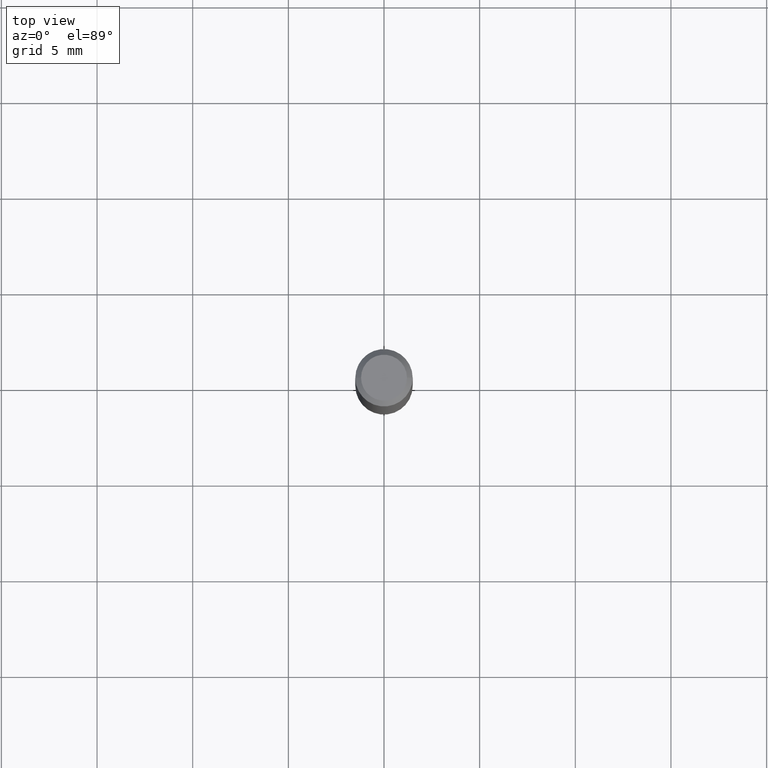
[diagram: clean part render]
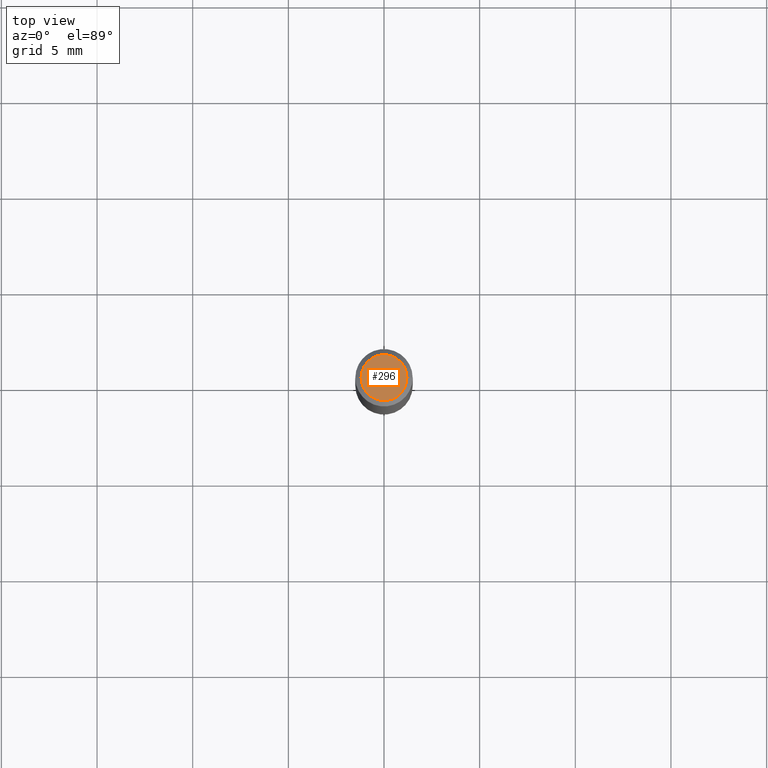
[diagram: same view with one face highlighted and labeled with its STEP entity id]
A machine part, top view. The second image highlights one B-rep face of the part: STEP entity #296.
In plain terms, the highlighted planar face has unit normal (0, -0, -1).
Its self-contained STEP definition (entity closure, byte-faithful):
#29 = CIRCLE ( 'NONE', #91, 0.04724000000000000421 ) ;
#91 = AXIS2_PLACEMENT_3D ( 'NONE', #409, #288, #177 ) ;
#93 = EDGE_LOOP ( 'NONE', ( #470, #223 ) ) ;
#94 = DIRECTION ( 'NONE',  ( -2.445468806185136597E-29, 3.491481338843145583E-15, 1.000000000000000000 ) ) ;
#145 = CIRCLE ( 'NONE', #323, 0.04724000000000000421 ) ;
#177 = DIRECTION ( 'NONE',  ( 1.000000000000000000, -6.982962677686266711E-15, 4.876185090822587894E-29 ) ) ;
#223 = ORIENTED_EDGE ( 'NONE', *, *, #265, .T. ) ;
#252 = PLANE ( 'NONE',  #319 ) ;
#265 = EDGE_CURVE ( 'NONE', #416, #330, #29, .T. ) ;
#288 = DIRECTION ( 'NONE',  ( -2.445468806185136597E-29, 3.491481338843145583E-15, 1.000000000000000000 ) ) ;
#293 = DIRECTION ( 'NONE',  ( 2.438088387897960049E-29, -3.491481338843145188E-15, -1.000000000000000000 ) ) ;
#296 = ADVANCED_FACE ( 'NONE', ( #473 ), #252, .F. ) ;
#305 = CARTESIAN_POINT ( 'NONE',  ( 8.265746106709734507E-48, -1.180129479067563789E-33, -3.380025165646692144E-19 ) ) ;
#319 = AXIS2_PLACEMENT_3D ( 'NONE', #439, #293, #434 ) ;
#323 = AXIS2_PLACEMENT_3D ( 'NONE', #305, #94, #375 ) ;
#330 = VERTEX_POINT ( 'NONE', #404 ) ;
#336 = CARTESIAN_POINT ( 'NONE',  ( 0.04724000000000000421, -3.852183633974369345E-16, -3.380025165621689721E-19 ) ) ;
#351 = EDGE_CURVE ( 'NONE', #330, #416, #145, .T. ) ;
#375 = DIRECTION ( 'NONE',  ( 1.000000000000000000, -6.982962677686266711E-15, 4.876185090822587894E-29 ) ) ;
#404 = CARTESIAN_POINT ( 'NONE',  ( -0.04724000000000000421, 3.504923541997677355E-16, -3.380025165670481712E-19 ) ) ;
#409 = CARTESIAN_POINT ( 'NONE',  ( 8.265746106709734507E-48, -1.180129479067563789E-33, -3.380025165646692144E-19 ) ) ;
#416 = VERTEX_POINT ( 'NONE', #336 ) ;
#434 = DIRECTION ( 'NONE',  ( -1.000000000000000000, 6.982962677686265922E-15, -4.876176775795935793E-29 ) ) ;
#439 = CARTESIAN_POINT ( 'NONE',  ( 4.132873053354867254E-48, -5.900647395337818946E-34, -1.690012582823346072E-19 ) ) ;
#470 = ORIENTED_EDGE ( 'NONE', *, *, #351, .T. ) ;
#473 = FACE_OUTER_BOUND ( 'NONE', #93, .T. ) ;